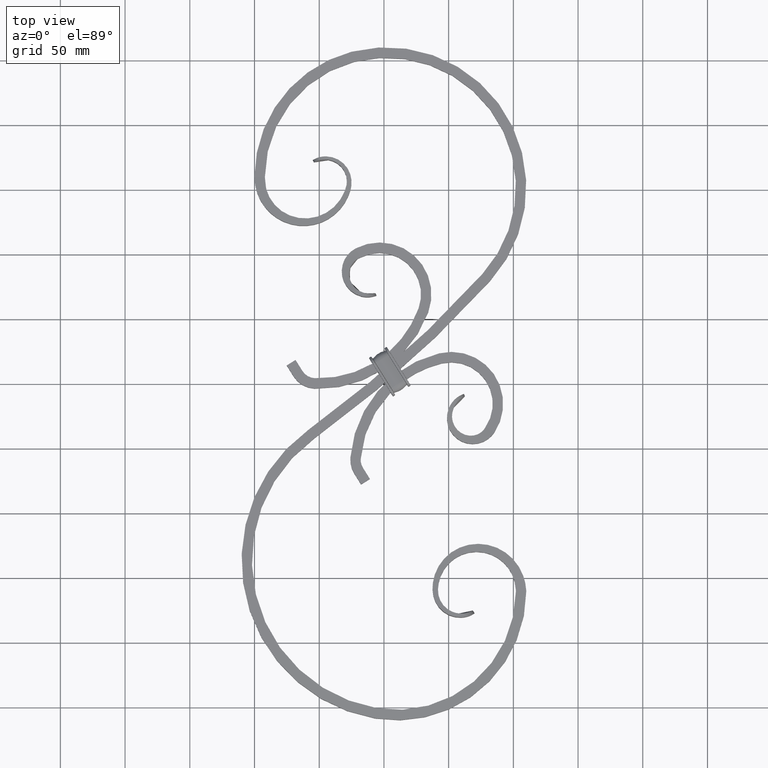
[diagram: clean part render]
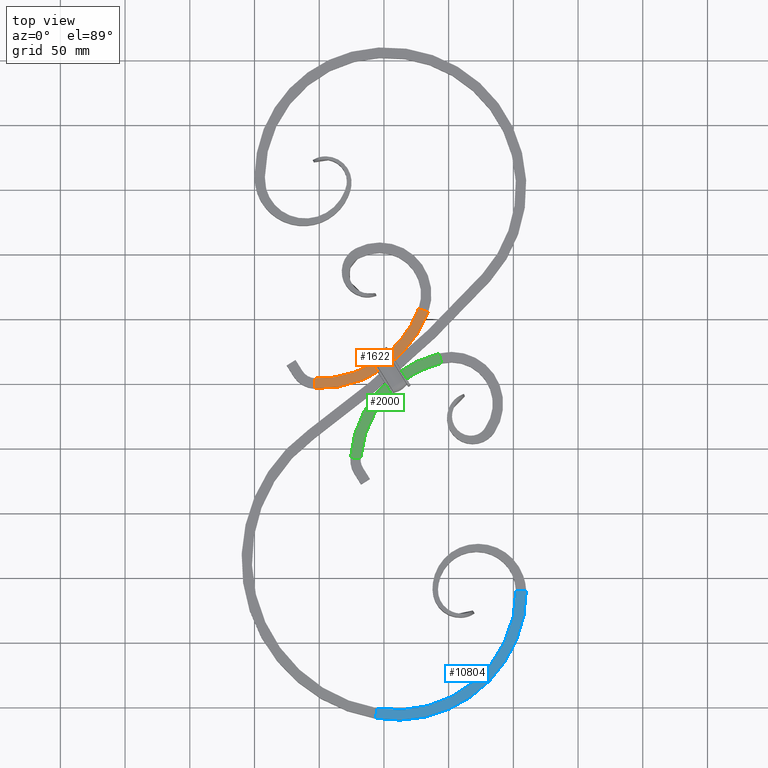
[diagram: same view with three faces highlighted in distinct colors, each labeled with its STEP entity id]
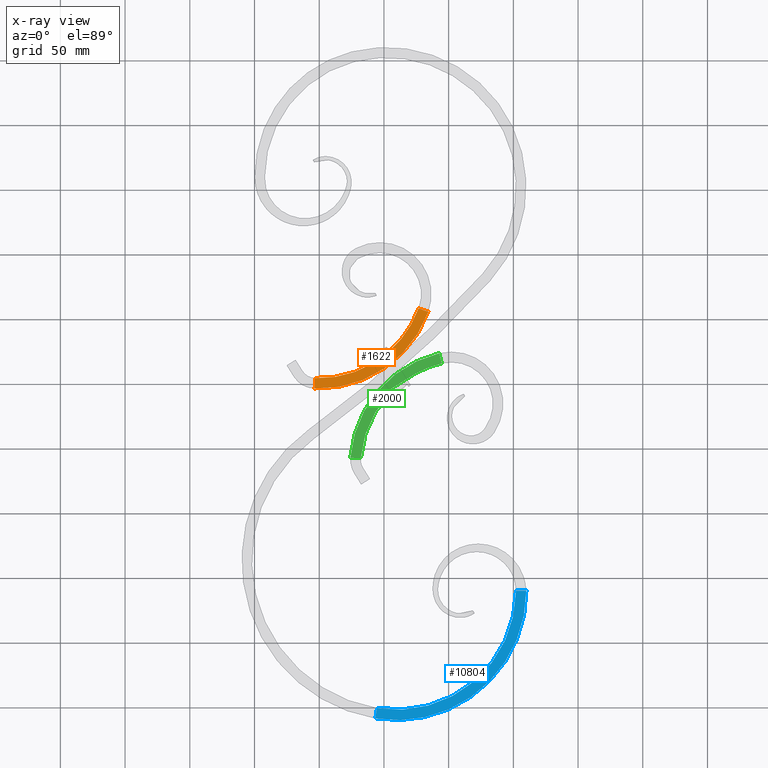
[diagram: x-ray of the same camera — body ghosted, the three highlighted faces saturated]
A machine part, top view with three faces highlighted in distinct colors.
The next image is the same camera in x-ray (body ghosted, the three faces saturated) — at least one of them is partly hidden behind the body in this view.
Their STEP definitions:

[orange] entity #1622 — the highlighted planar face has unit normal (0, 0, 1).
#341 = CARTESIAN_POINT ( 'NONE',  ( 4.718403416279869589, 23.63418115078601645, 8.000000000000001776 ) ) ;
#436 = DIRECTION ( 'NONE',  ( 0.000000000000000000, 0.000000000000000000, 1.000000000000000000 ) ) ;
#545 = EDGE_CURVE ( 'NONE', #11594, #17729, #1838, .T. ) ;
#881 = CARTESIAN_POINT ( 'NONE',  ( -8.301141774754107416, 15.48050587037088199, 8.000000000000000000 ) ) ;
#1003 = AXIS2_PLACEMENT_3D ( 'NONE', #11697, #10188, #14547 ) ;
#1622 = ADVANCED_FACE ( 'NONE', ( #2010 ), #6449, .T. ) ;
#1665 = CARTESIAN_POINT ( 'NONE',  ( 34.27571942280820849, 55.50183735079836111, 8.000000000000000000 ) ) ;
#1714 = CARTESIAN_POINT ( 'NONE',  ( 4.752366282312895152, 23.84204907071983470, 8.000000000000001776 ) ) ;
#1838 = CIRCLE ( 'NONE', #16026, 82.00000000000000000 ) ;
#1901 = CARTESIAN_POINT ( 'NONE',  ( 4.739923036239247267, 24.09261215079310503, 7.999999999999996447 ) ) ;
#1910 = ORIENTED_EDGE ( 'NONE', *, *, #10392, .F. ) ;
#2010 = FACE_OUTER_BOUND ( 'NONE', #17373, .T. ) ;
#2173 = EDGE_CURVE ( 'NONE', #15190, #5894, #2920, .T. ) ;
#2386 = DIRECTION ( 'NONE',  ( 0.000000000000000000, 0.000000000000000000, 1.000000000000000000 ) ) ;
#2494 = ORIENTED_EDGE ( 'NONE', *, *, #16539, .T. ) ;
#2808 = B_SPLINE_CURVE_WITH_KNOTS ( 'NONE', 3,
 ( #8161, #3717, #13860, #881, #6681, #15336, #11081, #3655 ),
 .UNSPECIFIED., .F., .F.,
 ( 4, 2, 2, 4 ),
 ( 0.003269523176034401339, 0.003408219776288977203, 0.003546916376543553066, 0.003824309577052699589 ),
 .UNSPECIFIED. ) ;
#2872 = CARTESIAN_POINT ( 'NONE',  ( -2.604297531537833166, 35.93901990651755796, 8.000000000000000000 ) ) ;
#2920 = LINE ( 'NONE', #2872, #13490 ) ;
#3026 = CARTESIAN_POINT ( 'NONE',  ( 4.600932784608542825, 23.46470108449486958, 8.000000000000000000 ) ) ;
#3258 = CARTESIAN_POINT ( 'NONE',  ( 4.747677757547521971, 23.75738162270760512, 7.999999999999998224 ) ) ;
#3281 = EDGE_CURVE ( 'NONE', #15517, #17729, #2808, .T. ) ;
#3586 = ORIENTED_EDGE ( 'NONE', *, *, #17762, .T. ) ;
#3595 = CARTESIAN_POINT ( 'NONE',  ( -8.647317536346944777, 15.61409098148418195, 8.000000000000000000 ) ) ;
#3655 = CARTESIAN_POINT ( 'NONE',  ( -8.647317536346944777, 15.61409098148418195, 8.000000000000000000 ) ) ;
#3717 = CARTESIAN_POINT ( 'NONE',  ( -8.159558753825011834, 15.49106100682969434, 7.999999999999998224 ) ) ;
#3810 = DIRECTION ( 'NONE',  ( -0.03581367998220363891, -0.9993584843919284255, 0.000000000000000000 ) ) ;
#4168 = LINE ( 'NONE', #9323, #9476 ) ;
#4397 = ORIENTED_EDGE ( 'NONE', *, *, #545, .F. ) ;
#4624 = EDGE_CURVE ( 'NONE', #5894, #12977, #16202, .T. ) ;
#5390 = VERTEX_POINT ( 'NONE', #1665 ) ;
#5619 = EDGE_CURVE ( 'NONE', #10405, #5390, #6555, .T. ) ;
#5894 = VERTEX_POINT ( 'NONE', #7784 ) ;
#6083 = CARTESIAN_POINT ( 'NONE',  ( 4.694406172550837475, 24.25865235162435596, 8.000000000000000000 ) ) ;
#6449 = PLANE ( 'NONE',  #10732 ) ;
#6555 = CIRCLE ( 'NONE', #11032, 89.99999999999998579 ) ;
#6681 = CARTESIAN_POINT ( 'NONE',  ( -8.348020861014179061, 15.48872045913461015, 8.000000000000001776 ) ) ;
#7202 = DIRECTION ( 'NONE',  ( 0.9398692134568541467, -0.3415345686691090288, 0.000000000000000000 ) ) ;
#7704 = CARTESIAN_POINT ( 'NONE',  ( 4.605927397853338157, 24.40024798985997734, 8.000000000000000000 ) ) ;
#7784 = CARTESIAN_POINT ( 'NONE',  ( 4.605927397853338157, 24.40024798985997734, 8.000000000000000000 ) ) ;
#7902 = ORIENTED_EDGE ( 'NONE', *, *, #9872, .F. ) ;
#8161 = CARTESIAN_POINT ( 'NONE',  ( -8.119788657737950999, 15.51591212099697259, 8.000000000000000000 ) ) ;
#8293 = DIRECTION ( 'NONE',  ( 0.000000000000000000, 0.000000000000000000, 1.000000000000000000 ) ) ;
#9323 = CARTESIAN_POINT ( 'NONE',  ( -53.24923154684929472, 4.292552810880069458, 8.000000000000000000 ) ) ;
#9476 = VECTOR ( 'NONE', #16743, 1000.000000000000000 ) ;
#9872 = EDGE_CURVE ( 'NONE', #16866, #5390, #17225, .T. ) ;
#9915 = CARTESIAN_POINT ( 'NONE',  ( 26.75676571515338864, 58.23411390015122180, 8.000000000000000000 ) ) ;
#10188 = DIRECTION ( 'NONE',  ( 0.000000000000000000, 0.000000000000000000, 1.000000000000000000 ) ) ;
#10360 = CIRCLE ( 'NONE', #1003, 82.00000000000000000 ) ;
#10392 = EDGE_CURVE ( 'NONE', #15190, #16866, #10360, .T. ) ;
#10405 = VERTEX_POINT ( 'NONE', #17788 ) ;
#10636 = CARTESIAN_POINT ( 'NONE',  ( 4.600932784608542825, 23.46470108449486958, 8.000000000000000000 ) ) ;
#10732 = AXIS2_PLACEMENT_3D ( 'NONE', #18213, #436, #16684 ) ;
#11032 = AXIS2_PLACEMENT_3D ( 'NONE', #12891, #8293, #11332 ) ;
#11081 = CARTESIAN_POINT ( 'NONE',  ( -8.568631458385933541, 15.56524062794255769, 7.999999999999998224 ) ) ;
#11332 = DIRECTION ( 'NONE',  ( -0.03581367998220362503, -0.9993584843919284255, 0.000000000000000000 ) ) ;
#11426 = CARTESIAN_POINT ( 'NONE',  ( -50.31250978830863829, 86.23994853101818592, 8.000000000000000000 ) ) ;
#11594 = VERTEX_POINT ( 'NONE', #15562 ) ;
#11697 = CARTESIAN_POINT ( 'NONE',  ( -50.31250978830863829, 86.23994853101818592, 8.000000000000000000 ) ) ;
#12891 = CARTESIAN_POINT ( 'NONE',  ( -50.31250978830863829, 86.23994853101818592, 8.000000000000000000 ) ) ;
#12977 = VERTEX_POINT ( 'NONE', #3026 ) ;
#13021 = CARTESIAN_POINT ( 'NONE',  ( -1.759427936564703199, 19.49030660274591753, 8.000000000000000000 ) ) ;
#13143 = DIRECTION ( 'NONE',  ( -0.8480480961564325071, -0.5299192642331945757, 0.000000000000000000 ) ) ;
#13345 = VECTOR ( 'NONE', #7202, 1000.000000000000000 ) ;
#13490 = VECTOR ( 'NONE', #17353, 1000.000000000000000 ) ;
#13860 = CARTESIAN_POINT ( 'NONE',  ( -8.207793394735134029, 15.48108371235610115, 8.000000000000000000 ) ) ;
#14059 = LINE ( 'NONE', #13021, #14751 ) ;
#14500 = CARTESIAN_POINT ( 'NONE',  ( 4.226757674733010006, 25.00704639013638797, 8.000000000000000000 ) ) ;
#14547 = DIRECTION ( 'NONE',  ( -0.03581367998220363891, -0.9993584843919284255, 0.000000000000000000 ) ) ;
#14751 = VECTOR ( 'NONE', #13143, 1000.000000000000000 ) ;
#15134 = CARTESIAN_POINT ( 'NONE',  ( 4.664326536446439242, 23.52009885467467143, 8.000000000000001776 ) ) ;
#15190 = VERTEX_POINT ( 'NONE', #14500 ) ;
#15336 = CARTESIAN_POINT ( 'NONE',  ( -8.482799912533412368, 15.52497671488892195, 7.999999999999998224 ) ) ;
#15517 = VERTEX_POINT ( 'NONE', #15639 ) ;
#15562 = CARTESIAN_POINT ( 'NONE',  ( -53.24923154684929472, 4.292552810880067682, 8.000000000000000000 ) ) ;
#15639 = CARTESIAN_POINT ( 'NONE',  ( -8.119788657737950999, 15.51591212099697259, 8.000000000000000000 ) ) ;
#16026 = AXIS2_PLACEMENT_3D ( 'NONE', #11426, #2386, #3810 ) ;
#16052 = ORIENTED_EDGE ( 'NONE', *, *, #3281, .T. ) ;
#16202 = B_SPLINE_CURVE_WITH_KNOTS ( 'NONE', 3,
 ( #7704, #6083, #1901, #1714, #3258, #341, #16531, #15134, #17867, #10636 ),
 .UNSPECIFIED., .F., .F.,
 ( 4, 2, 2, 2, 4 ),
 ( 0.002558656617843166250, 0.003057267417116872089, 0.003306572816753724792, 0.003431225516572150927, 0.003555878216390577495 ),
 .UNSPECIFIED. ) ;
#16531 = CARTESIAN_POINT ( 'NONE',  ( 4.705091311648011754, 23.59442088313698349, 8.000000000000000000 ) ) ;
#16539 = EDGE_CURVE ( 'NONE', #12977, #15517, #14059, .T. ) ;
#16684 = DIRECTION ( 'NONE',  ( 1.000000000000000000, 0.000000000000000000, -0.000000000000000000 ) ) ;
#16743 = DIRECTION ( 'NONE',  ( -0.03581367998220302135, -0.9993584843919285365, 0.000000000000000000 ) ) ;
#16866 = VERTEX_POINT ( 'NONE', #9915 ) ;
#17225 = LINE ( 'NONE', #18644, #13345 ) ;
#17353 = DIRECTION ( 'NONE',  ( 0.5299192642331945757, -0.8480480961564325071, 0.000000000000000000 ) ) ;
#17355 = ORIENTED_EDGE ( 'NONE', *, *, #4624, .T. ) ;
#17373 = EDGE_LOOP ( 'NONE', ( #2494, #16052, #4397, #3586, #18960, #7902, #1910, #17798, #17355 ) ) ;
#17729 = VERTEX_POINT ( 'NONE', #3595 ) ;
#17762 = EDGE_CURVE ( 'NONE', #11594, #10405, #4168, .T. ) ;
#17788 = CARTESIAN_POINT ( 'NONE',  ( -53.53574098670691939, -3.702315064255359278, 8.000000000000000000 ) ) ;
#17798 = ORIENTED_EDGE ( 'NONE', *, *, #2173, .T. ) ;
#17867 = CARTESIAN_POINT ( 'NONE',  ( 4.636314428336133275, 23.48680998928041674, 8.000000000000001776 ) ) ;
#18213 = CARTESIAN_POINT ( 'NONE',  ( -53.24923154684933735, 4.292552810880069458, 8.000000000000000000 ) ) ;
#18644 = CARTESIAN_POINT ( 'NONE',  ( 26.75676571515336022, 58.23411390015123601, 8.000000000000000000 ) ) ;
#18960 = ORIENTED_EDGE ( 'NONE', *, *, #5619, .T. ) ;

[blue] entity #10804 — the highlighted planar face has unit normal (0, 0, 1).
#78 = AXIS2_PLACEMENT_3D ( 'NONE', #7003, #11400, #13211 ) ;
#293 = DIRECTION ( 'NONE',  ( 0.000000000000000000, 0.000000000000000000, 1.000000000000000000 ) ) ;
#551 = DIRECTION ( 'NONE',  ( -0.1666666666666661023, -0.9860132971832693549, 2.168404344971010347E-16 ) ) ;
#867 = CARTESIAN_POINT ( 'NONE',  ( -6.666666666666518637, -258.6013297183266104, 8.000000000000001776 ) ) ;
#1545 = CARTESIAN_POINT ( 'NONE',  ( -5.333333333333217574, -250.7132233408604236, 8.000000000000000000 ) ) ;
#2270 = VECTOR ( 'NONE', #551, 1000.000000000000114 ) ;
#2710 = DIRECTION ( 'NONE',  ( -0.1666666666666663521, -0.9860132971832693549, 0.000000000000000000 ) ) ;
#3273 = CARTESIAN_POINT ( 'NONE',  ( -5.333333333333273529, -250.7132233408608784, 8.000000000000000000 ) ) ;
#5258 = EDGE_CURVE ( 'NONE', #15527, #15150, #15030, .T. ) ;
#5664 = EDGE_CURVE ( 'NONE', #9635, #9905, #9997, .T. ) ;
#5699 = CARTESIAN_POINT ( 'NONE',  ( 110.0000000000000426, -160.0000000000000000, 8.000000000000000000 ) ) ;
#6103 = DIRECTION ( 'NONE',  ( 1.000000000000000000, 0.000000000000000000, -0.000000000000000000 ) ) ;
#6737 = LINE ( 'NONE', #14392, #17955 ) ;
#7003 = CARTESIAN_POINT ( 'NONE',  ( 10.00000000000003730, -160.0000000000000568, 8.000000000000000000 ) ) ;
#7123 = LINE ( 'NONE', #1545, #2270 ) ;
#7351 = CARTESIAN_POINT ( 'NONE',  ( 10.00000000000003730, -160.0000000000000568, 8.000000000000001776 ) ) ;
#9263 = PLANE ( 'NONE',  #14060 ) ;
#9635 = VERTEX_POINT ( 'NONE', #10725 ) ;
#9905 = VERTEX_POINT ( 'NONE', #14245 ) ;
#9997 = CIRCLE ( 'NONE', #78, 92.00000000000004263 ) ;
#10550 = ORIENTED_EDGE ( 'NONE', *, *, #5664, .F. ) ;
#10725 = CARTESIAN_POINT ( 'NONE',  ( -5.333333333333248660, -250.7132233408604236, 8.000000000000000000 ) ) ;
#10804 = ADVANCED_FACE ( 'NONE', ( #18567 ), #9263, .T. ) ;
#11400 = DIRECTION ( 'NONE',  ( 0.000000000000000000, 0.000000000000000000, 1.000000000000000000 ) ) ;
#11830 = ORIENTED_EDGE ( 'NONE', *, *, #5258, .T. ) ;
#12776 = ORIENTED_EDGE ( 'NONE', *, *, #16072, .F. ) ;
#12967 = DIRECTION ( 'NONE',  ( 0.000000000000000000, 0.000000000000000000, 1.000000000000000000 ) ) ;
#12970 = EDGE_CURVE ( 'NONE', #9635, #15527, #7123, .T. ) ;
#13211 = DIRECTION ( 'NONE',  ( -0.1666666666666663521, -0.9860132971832693549, 0.000000000000000000 ) ) ;
#14060 = AXIS2_PLACEMENT_3D ( 'NONE', #3273, #293, #6103 ) ;
#14245 = CARTESIAN_POINT ( 'NONE',  ( 102.0000000000000568, -160.0000000000000000, 8.000000000000000000 ) ) ;
#14392 = CARTESIAN_POINT ( 'NONE',  ( 102.0000000000000426, -160.0000000000000000, 8.000000000000000000 ) ) ;
#15030 = CIRCLE ( 'NONE', #17547, 100.0000000000000000 ) ;
#15150 = VERTEX_POINT ( 'NONE', #5699 ) ;
#15527 = VERTEX_POINT ( 'NONE', #867 ) ;
#16072 = EDGE_CURVE ( 'NONE', #9905, #15150, #6737, .T. ) ;
#16659 = EDGE_LOOP ( 'NONE', ( #11830, #12776, #10550, #17201 ) ) ;
#17131 = DIRECTION ( 'NONE',  ( 1.000000000000000000, 0.000000000000000000, 2.168404344971010594E-16 ) ) ;
#17201 = ORIENTED_EDGE ( 'NONE', *, *, #12970, .T. ) ;
#17547 = AXIS2_PLACEMENT_3D ( 'NONE', #7351, #12967, #2710 ) ;
#17955 = VECTOR ( 'NONE', #17131, 1000.000000000000000 ) ;
#18567 = FACE_OUTER_BOUND ( 'NONE', #16659, .T. ) ;

[green] entity #2000 — the highlighted planar face has unit normal (0, 0, 1).
#104 = CARTESIAN_POINT ( 'NONE',  ( 5.156117688575879043, -6.673519166724803497, 8.000000000000000000 ) ) ;
#768 = DIRECTION ( 'NONE',  ( -0.9970916005327684628, 0.07621246713630348835, 0.000000000000000000 ) ) ;
#769 = DIRECTION ( 'NONE',  ( -0.9970916005327683518, 0.07621246713630373815, 0.000000000000000000 ) ) ;
#801 = PLANE ( 'NONE',  #15649 ) ;
#1017 = CARTESIAN_POINT ( 'NONE',  ( 15.06043582829506811, 1.955828317966836538, 8.000000000000000000 ) ) ;
#1190 = CARTESIAN_POINT ( 'NONE',  ( 4.344427497636623059, -5.281935144804780435, 8.000000000000003553 ) ) ;
#1629 = CARTESIAN_POINT ( 'NONE',  ( 4.478419471388789930, -5.588975309490708199, 8.000000000000000000 ) ) ;
#2000 = ADVANCED_FACE ( 'NONE', ( #18061 ), #801, .T. ) ;
#2004 = CARTESIAN_POINT ( 'NONE',  ( 63.80188787381135995, -63.98559153704263736, 8.000000000000000000 ) ) ;
#2500 = ORIENTED_EDGE ( 'NONE', *, *, #2556, .T. ) ;
#2556 = EDGE_CURVE ( 'NONE', #8799, #7266, #10512, .T. ) ;
#2743 = CARTESIAN_POINT ( 'NONE',  ( 4.478419471388789930, -5.588975309490708199, 8.000000000000000000 ) ) ;
#2806 = CARTESIAN_POINT ( 'NONE',  ( 4.365731509453983250, -4.823649956899339841, 8.000000000000000000 ) ) ;
#2926 = ORIENTED_EDGE ( 'NONE', *, *, #12812, .T. ) ;
#3089 = DIRECTION ( 'NONE',  ( -0.8480480961564325071, -0.5299192642331945757, 0.000000000000000000 ) ) ;
#3485 = DIRECTION ( 'NONE',  ( -0.9970916005327684628, 0.07621246713630348835, 0.000000000000000000 ) ) ;
#4187 = LINE ( 'NONE', #12469, #14280 ) ;
#4272 = CARTESIAN_POINT ( 'NONE',  ( 4.389649038152960259, -5.446912920025474669, 8.000000000000000000 ) ) ;
#4337 = CARTESIAN_POINT ( 'NONE',  ( 4.419551794329096950, -4.709548865051479183, 8.000000000000000000 ) ) ;
#4347 = AXIS2_PLACEMENT_3D ( 'NONE', #2004, #12257, #3485 ) ;
#4399 = CARTESIAN_POINT ( 'NONE',  ( 4.379229813826087891, -4.783328304665017683, 8.000000000000001776 ) ) ;
#4695 = CIRCLE ( 'NONE', #6137, 90.00000000000001421 ) ;
#4749 = CARTESIAN_POINT ( 'NONE',  ( -17.95962336987550501, -57.73616923186575889, 8.000000000000000000 ) ) ;
#5113 = EDGE_CURVE ( 'NONE', #18538, #12060, #4695, .T. ) ;
#5806 = CARTESIAN_POINT ( 'NONE',  ( 4.336718166618143577, -4.946206373504411502, 8.000000000000001776 ) ) ;
#5812 = EDGE_LOOP ( 'NONE', ( #19043, #2500, #14449, #9345, #7243, #2926, #6904, #5879 ) ) ;
#5879 = ORIENTED_EDGE ( 'NONE', *, *, #9209, .F. ) ;
#6137 = AXIS2_PLACEMENT_3D ( 'NONE', #6764, #18351, #769 ) ;
#6150 = CARTESIAN_POINT ( 'NONE',  ( 44.59383821047989471, 15.73298113037907520, 8.000000000000000000 ) ) ;
#6289 = LINE ( 'NONE', #14843, #10887 ) ;
#6654 = VERTEX_POINT ( 'NONE', #6889 ) ;
#6764 = CARTESIAN_POINT ( 'NONE',  ( 63.80188787381135995, -63.98559153704263736, 8.000000000000000000 ) ) ;
#6889 = CARTESIAN_POINT ( 'NONE',  ( 4.483414084655682252, -4.653428404104610117, 8.000000000000000000 ) ) ;
#6904 = ORIENTED_EDGE ( 'NONE', *, *, #16808, .F. ) ;
#7243 = ORIENTED_EDGE ( 'NONE', *, *, #16460, .T. ) ;
#7266 = VERTEX_POINT ( 'NONE', #6150 ) ;
#7961 = B_SPLINE_CURVE_WITH_KNOTS ( 'NONE', 3,
 ( #12937, #11572, #4337, #4399, #2806, #5806, #11447, #1190, #4272, #2743 ),
 .UNSPECIFIED., .F., .F.,
 ( 4, 2, 2, 2, 4 ),
 ( 0.003080484381116679101, 0.003204744503547910656, 0.003329004625979142644, 0.003577524870841605753, 0.004074565360566535441 ),
 .UNSPECIFIED. ) ;
#8282 = DIRECTION ( 'NONE',  ( 0.000000000000000000, 0.000000000000000000, 1.000000000000000000 ) ) ;
#8799 = VERTEX_POINT ( 'NONE', #1017 ) ;
#9209 = EDGE_CURVE ( 'NONE', #6654, #17192, #7961, .T. ) ;
#9345 = ORIENTED_EDGE ( 'NONE', *, *, #5113, .F. ) ;
#9596 = DIRECTION ( 'NONE',  ( -0.000000000000000000, -0.000000000000000000, -1.000000000000000000 ) ) ;
#9633 = CARTESIAN_POINT ( 'NONE',  ( -17.95962336987567198, -57.73616923186575178, 8.000000000000000000 ) ) ;
#10166 = CARTESIAN_POINT ( 'NONE',  ( 42.71988214576460763, 23.51040285402995877, 8.000000000000000000 ) ) ;
#10411 = LINE ( 'NONE', #14296, #16799 ) ;
#10512 = CIRCLE ( 'NONE', #4347, 82.00000000000002842 ) ;
#10887 = VECTOR ( 'NONE', #11739, 1000.000000000000000 ) ;
#11057 = DIRECTION ( 'NONE',  ( 0.5299192642331945757, -0.8480480961564325071, 0.000000000000000000 ) ) ;
#11323 = DIRECTION ( 'NONE',  ( 0.9970916005327682408, -0.07621246713630659697, 0.000000000000000000 ) ) ;
#11447 = CARTESIAN_POINT ( 'NONE',  ( 4.331966469646756579, -5.030230791822274838, 8.000000000000001776 ) ) ;
#11572 = CARTESIAN_POINT ( 'NONE',  ( 4.447769342615490729, -4.675701710963407365, 8.000000000000000000 ) ) ;
#11739 = DIRECTION ( 'NONE',  ( 0.2342445080894064446, -0.9721777154563624457, 0.000000000000000000 ) ) ;
#12060 = VERTEX_POINT ( 'NONE', #10166 ) ;
#12257 = DIRECTION ( 'NONE',  ( -0.000000000000000000, -0.000000000000000000, -1.000000000000000000 ) ) ;
#12469 = CARTESIAN_POINT ( 'NONE',  ( 3.816550522498980857, -4.529763576882213094, 8.000000000000000000 ) ) ;
#12622 = DIRECTION ( 'NONE',  ( 1.000000000000000000, 0.000000000000000000, -0.000000000000000000 ) ) ;
#12682 = CARTESIAN_POINT ( 'NONE',  ( -25.93635617413765004, -57.12646949477531422, 8.000000000000000000 ) ) ;
#12812 = EDGE_CURVE ( 'NONE', #16269, #12960, #12842, .T. ) ;
#12842 = CIRCLE ( 'NONE', #14934, 82.00000000000002842 ) ;
#12937 = CARTESIAN_POINT ( 'NONE',  ( 4.483414084655682252, -4.653428404104610117, 8.000000000000000000 ) ) ;
#12960 = VERTEX_POINT ( 'NONE', #104 ) ;
#13045 = EDGE_CURVE ( 'NONE', #8799, #6654, #17419, .T. ) ;
#14280 = VECTOR ( 'NONE', #11057, 1000.000000000000000 ) ;
#14296 = CARTESIAN_POINT ( 'NONE',  ( -17.95962336987565067, -57.73616923186574468, 8.000000000000000000 ) ) ;
#14449 = ORIENTED_EDGE ( 'NONE', *, *, #14844, .F. ) ;
#14843 = CARTESIAN_POINT ( 'NONE',  ( 44.59383821047989471, 15.73298113037904855, 8.000000000000000000 ) ) ;
#14844 = EDGE_CURVE ( 'NONE', #12060, #7266, #6289, .T. ) ;
#14934 = AXIS2_PLACEMENT_3D ( 'NONE', #18350, #9596, #768 ) ;
#15649 = AXIS2_PLACEMENT_3D ( 'NONE', #9633, #8282, #12622 ) ;
#16269 = VERTEX_POINT ( 'NONE', #4749 ) ;
#16460 = EDGE_CURVE ( 'NONE', #18538, #16269, #10411, .T. ) ;
#16799 = VECTOR ( 'NONE', #11323, 1000.000000000000114 ) ;
#16808 = EDGE_CURVE ( 'NONE', #17192, #12960, #4187, .T. ) ;
#17192 = VERTEX_POINT ( 'NONE', #1629 ) ;
#17194 = VECTOR ( 'NONE', #3089, 1000.000000000000000 ) ;
#17419 = LINE ( 'NONE', #18272, #17194 ) ;
#18061 = FACE_OUTER_BOUND ( 'NONE', #5812, .T. ) ;
#18272 = CARTESIAN_POINT ( 'NONE',  ( 10.84377480580682374, -0.6790339223766480581, 8.000000000000000000 ) ) ;
#18350 = CARTESIAN_POINT ( 'NONE',  ( 63.80188787381135995, -63.98559153704263736, 8.000000000000000000 ) ) ;
#18351 = DIRECTION ( 'NONE',  ( -0.000000000000000000, -0.000000000000000000, -1.000000000000000000 ) ) ;
#18538 = VERTEX_POINT ( 'NONE', #12682 ) ;
#19043 = ORIENTED_EDGE ( 'NONE', *, *, #13045, .F. ) ;